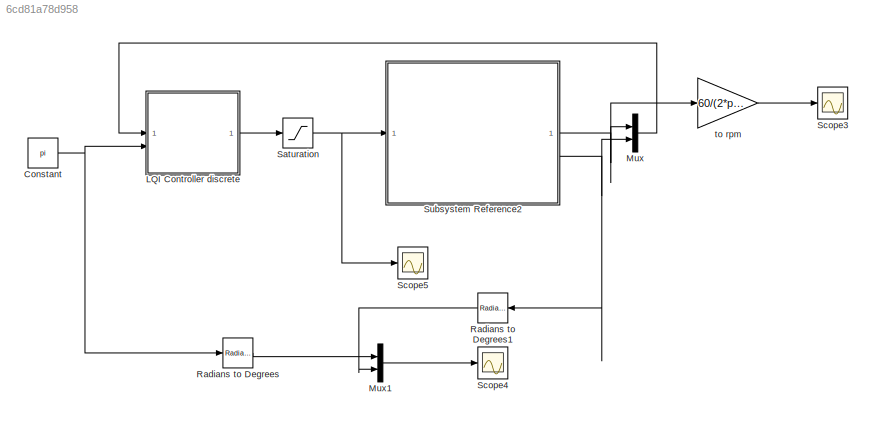
MODEL slx_6cd81a78d958
KIND model
CONFIG AbsTol = auto
CONFIG EnableMultiTasking = on
CONFIG FixedStep = 0.001
CONFIG MaxStep = auto
CONFIG MinStep = auto
CONFIG RelTol = 1e-3
CONFIG SampleTimeConstraint = Unconstrained
CONFIG SolverName = FixedStepAuto
CONFIG StartTime = 0.0
CONFIG StopTime = inf
BLOCK [Constant] Constant
  SampleTime = 0.005
  Value = pi
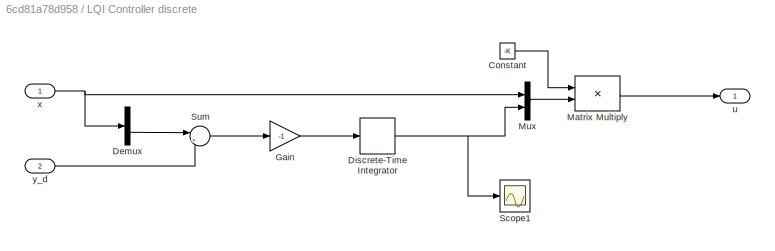
BLOCK [SubSystem] LQI Controller discrete
BLOCK [Constant] LQI Controller discrete/Constant
  Value = -K
  VectorParams1D = off
BLOCK [Demux] LQI Controller discrete/Demux
  Outputs = 2
BLOCK [DiscreteIntegrator] LQI Controller discrete/Discrete-Time Integrator
  ICPrevOutput = DiscIntNeverNeededParam
  ICPrevScaledInput = DiscIntNeverNeededParam
  InitialConditionSetting = Auto
  SampleTime = Ts
BLOCK [Gain] LQI Controller discrete/Gain
  Gain = -1
BLOCK [Product] LQI Controller discrete/Matrix Multiply
  Multiplication = Matrix(*)
BLOCK [Mux] LQI Controller discrete/Mux
  DisplayOption = bar
  Inputs = 2
BLOCK [Scope] LQI Controller discrete/Scope1
  Floating = off
  NumInputPorts = 1
  ScopeSpecificationString = Simulink.scopes.TimeScopeBlockCfg('CurrentConfiguration', extmgr.ConfigurationSet(extmgr.Configuration('Core','General UI',true),extmgr.Configuration('Core','Source UI',true),extmgr.Configuration('Sources','WiredSimulink',true,'DataLoggingVariableName','ScopeData2'),extmgr.Configuration('Visuals','Time Domain',true,'SerializedDisplays',{struct('MinYLimReal','-0.02004','MaxYLimReal','0.18037','YLab...<+1454ch>
BLOCK [Sum] LQI Controller discrete/Sum
  Inputs = |+-
BLOCK [Outport] LQI Controller discrete/u
  SampleTime = Ts
BLOCK [Inport] LQI Controller discrete/x
  SampleTime = Ts
BLOCK [Inport] LQI Controller discrete/y_d
  Port = 2
  SampleTime = Ts
BLOCK [Mux] Mux
  DisplayOption = bar
  Inputs = 2
BLOCK [Mux] Mux1
  DisplayOption = bar
  Inputs = 2
BLOCK [Reference] Radians to Degrees  REF=simulink_extras/Transformations/Radians
to Degrees
  SourceBlock = simulink_extras/Transformations/Radians\nto Degrees
  SourceType = RadiansToDegrees
BLOCK [Reference] Radians to Degrees1  REF=simulink_extras/Transformations/Radians
to Degrees
  NameLocation = top
  SourceBlock = simulink_extras/Transformations/Radians\nto Degrees
  SourceType = RadiansToDegrees
BLOCK [Saturate] Saturation
  LowerLimit = -12
  UpperLimit = 12
BLOCK [Scope] Scope3
  Floating = off
  NumInputPorts = 1
  ScopeSpecificationString = Simulink.scopes.TimeScopeBlockCfg('CurrentConfiguration', extmgr.ConfigurationSet(extmgr.Configuration('Core','General UI',true),extmgr.Configuration('Core','Source UI',true),extmgr.Configuration('Sources','WiredSimulink',true,'DataLoggingVariableName','ScopeData2'),extmgr.Configuration('Visuals','Time Domain',true,'TimeAxisLabels','All','SerializedDisplays',{struct('MinYLimReal','-10.15981','MaxY...<+1755ch>
BLOCK [Scope] Scope4
  Floating = off
  NumInputPorts = 1
  ScopeSpecificationString = Simulink.scopes.TimeScopeBlockCfg('CurrentConfiguration', extmgr.ConfigurationSet(extmgr.Configuration('Core','General UI',true),extmgr.Configuration('Core','Source UI',true),extmgr.Configuration('Sources','WiredSimulink',true,'DataLoggingVariableName','ScopeData1'),extmgr.Configuration('Visuals','Time Domain',true,'TimeAxisLabels','All','SerializedDisplays',{struct('MinYLimReal','-23.76919','MaxY...<+1765ch>
BLOCK [Scope] Scope5
  Floating = off
  NumInputPorts = 1
  ScopeSpecificationString = Simulink.scopes.TimeScopeBlockCfg('CurrentConfiguration', extmgr.ConfigurationSet(extmgr.Configuration('Core','General UI',true),extmgr.Configuration('Core','Source UI',true),extmgr.Configuration('Sources','WiredSimulink',true,'DataLoggingVariableName','ScopeData3'),extmgr.Configuration('Visuals','Time Domain',true,'TimeAxisLabels','All','SerializedDisplays',{struct('MinYLimReal','-1.56762','MaxYL...<+1753ch>
BLOCK [SubSystem] Subsystem Reference2
  ReferencedSubsystem = pololu_37D_hardware_interface
  Ts = 0.005
  pwmFreq = 2000
BLOCK [Gain] to rpm
  Gain = 60/(2*pi)
NET Constant:1 -> LQI Controller discrete:2, Radians to Degrees:1
LINE LQI Controller discrete/Constant:1 -> LQI Controller discrete/Matrix Multiply:1
LINE LQI Controller discrete/Demux:2 -> LQI Controller discrete/Sum:1
NET LQI Controller discrete/Discrete-Time Integrator:1 -> LQI Controller discrete/Mux:2, LQI Controller discrete/Scope1:1
LINE LQI Controller discrete/Gain:1 -> LQI Controller discrete/Discrete-Time Integrator:1
LINE LQI Controller discrete/Matrix Multiply:1 -> LQI Controller discrete/u:1
LINE LQI Controller discrete/Mux:1 -> LQI Controller discrete/Matrix Multiply:2
LINE LQI Controller discrete/Sum:1 -> LQI Controller discrete/Gain:1
NET LQI Controller discrete/x:1 -> LQI Controller discrete/Demux:1, LQI Controller discrete/Mux:1
LINE LQI Controller discrete/y_d:1 -> LQI Controller discrete/Sum:2
LINE LQI Controller discrete:1 -> Saturation:1
LINE Mux1:1 -> Scope4:1
LINE Mux:1 -> LQI Controller discrete:1
LINE Radians to Degrees1:1 -> Mux1:2
LINE Radians to Degrees:1 -> Mux1:1
NET Saturation:1 -> Scope5:1, Subsystem Reference2:1
NET Subsystem Reference2:1 -> Mux:1, to rpm:1
NET Subsystem Reference2:2 -> Mux:2, Radians to Degrees1:1
LINE to rpm:1 -> Scope3:1
note: NET lines group one-source signal fan-out (src -> all destinations, sorted); 1:1 wires keep LINE
